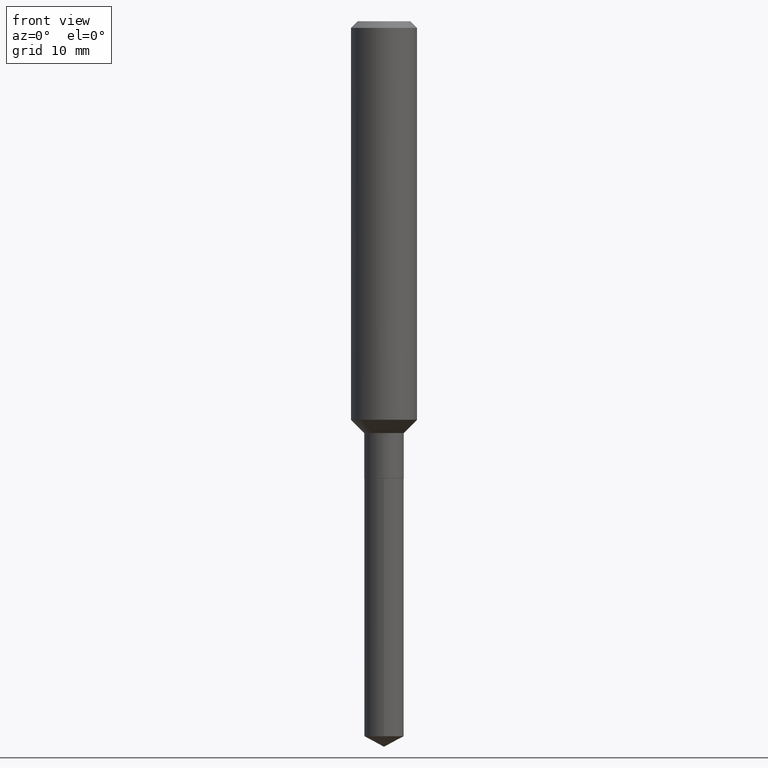
[diagram: clean part render]
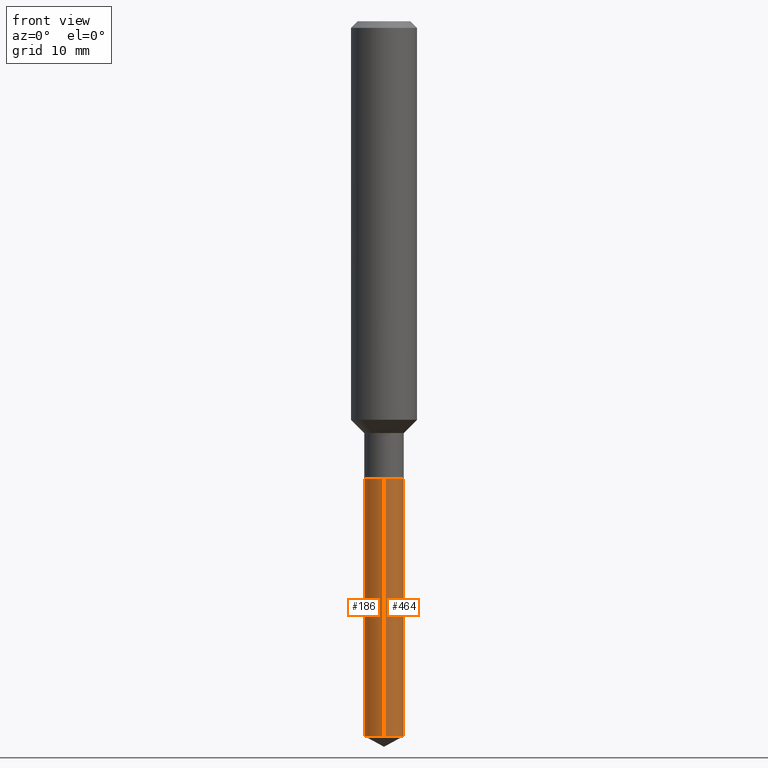
[diagram: same view with one multi-face feature highlighted, each face labeled with its STEP entity id]
A machine part, front view. The highlighted faces form ONE feature: a constant-radius fillet chain: 2 tangent blend faces with common blend radius 1.7996 mm. The faces share edges in the B-rep.
Their STEP definitions:
[1] entity #464 (Cylinder):
#24 = DIRECTION ( 'NONE',  ( -6.982962677686266711E-15, -1.000000000000000000, 0.000000000000000000 ) ) ;
#33 = CARTESIAN_POINT ( 'NONE',  ( -4.947429057140318261E-16, -0.07085000000000571396, -1.637699999999999489 ) ) ;
#37 = EDGE_CURVE ( 'NONE', #253, #355, #335, .T. ) ;
#38 = CYLINDRICAL_SURFACE ( 'NONE', #337, 0.07084999999999999631 ) ;
#50 = VECTOR ( 'NONE', #329, 39.37007874015748143 ) ;
#66 = VERTEX_POINT ( 'NONE', #231 ) ;
#75 = ORIENTED_EDGE ( 'NONE', *, *, #37, .F. ) ;
#97 = AXIS2_PLACEMENT_3D ( 'NONE', #345, #228, #263 ) ;
#118 = CARTESIAN_POINT ( 'NONE',  ( 4.004944263889397849E-29, -5.717998988623418403E-15, -1.637699999999999934 ) ) ;
#149 = ORIENTED_EDGE ( 'NONE', *, *, #359, .T. ) ;
#151 = EDGE_CURVE ( 'NONE', #185, #66, #195, .T. ) ;
#167 = EDGE_LOOP ( 'NONE', ( #236, #149, #75, #283 ) ) ;
#185 = VERTEX_POINT ( 'NONE', #474 ) ;
#195 = CIRCLE ( 'NONE', #202, 0.07084999999999999631 ) ;
#199 = DIRECTION ( 'NONE',  ( -2.439491125561430535E-29, 3.500041717724744558E-15, 1.000000000000000000 ) ) ;
#202 = AXIS2_PLACEMENT_3D ( 'NONE', #338, #429, #24 ) ;
#206 = LINE ( 'NONE', #241, #269 ) ;
#219 = DIRECTION ( 'NONE',  ( -6.982962677686265133E-15, -1.000000000000000000, 3.855819327684210983E-15 ) ) ;
#228 = DIRECTION ( 'NONE',  ( -2.439491125561430535E-29, 3.500041717724744558E-15, 1.000000000000000000 ) ) ;
#231 = CARTESIAN_POINT ( 'NONE',  ( 5.034195282860934727E-16, 0.07084999999999105902, -2.560728386766784936 ) ) ;
#236 = ORIENTED_EDGE ( 'NONE', *, *, #151, .T. ) ;
#241 = CARTESIAN_POINT ( 'NONE',  ( -4.947429057140318261E-16, -0.07085000000000571396, -1.637699999999999489 ) ) ;
#253 = VERTEX_POINT ( 'NONE', #33 ) ;
#254 = EDGE_CURVE ( 'NONE', #185, #253, #206, .T. ) ;
#263 = DIRECTION ( 'NONE',  ( -6.982962677686265133E-15, -1.000000000000000000, 3.855819327684210983E-15 ) ) ;
#269 = VECTOR ( 'NONE', #199, 39.37007874015748143 ) ;
#283 = ORIENTED_EDGE ( 'NONE', *, *, #254, .F. ) ;
#322 = LINE ( 'NONE', #411, #50 ) ;
#325 = DIRECTION ( 'NONE',  ( -2.439491125561430535E-29, 3.500041717724744558E-15, 1.000000000000000000 ) ) ;
#329 = DIRECTION ( 'NONE',  ( -2.439491125561430535E-29, 3.500041717724744558E-15, 1.000000000000000000 ) ) ;
#335 = CIRCLE ( 'NONE', #97, 0.07084999999999999631 ) ;
#337 = AXIS2_PLACEMENT_3D ( 'NONE', #118, #325, #219 ) ;
#338 = CARTESIAN_POINT ( 'NONE',  ( 6.256663822048253662E-29, -8.948636848951337196E-15, -2.560728386766784936 ) ) ;
#345 = CARTESIAN_POINT ( 'NONE',  ( 4.004944263889397849E-29, -5.717998988623418403E-15, -1.637699999999999934 ) ) ;
#355 = VERTEX_POINT ( 'NONE', #454 ) ;
#359 = EDGE_CURVE ( 'NONE', #66, #355, #322, .T. ) ;
#411 = CARTESIAN_POINT ( 'NONE',  ( 5.034195282860708916E-16, 0.07084999999999427867, -1.637700000000000156 ) ) ;
#429 = DIRECTION ( 'NONE',  ( -2.439491125561430535E-29, 3.500041717724744558E-15, 1.000000000000000000 ) ) ;
#450 = FACE_OUTER_BOUND ( 'NONE', #167, .T. ) ;
#454 = CARTESIAN_POINT ( 'NONE',  ( 5.034195282860936699E-16, 0.07084999999999427867, -1.637700000000000156 ) ) ;
#464 = ADVANCED_FACE ( 'NONE', ( #450 ), #38, .T. ) ;
#474 = CARTESIAN_POINT ( 'NONE',  ( -4.947429057140094421E-16, -0.07085000000000894749, -2.560728386766784936 ) ) ;
[2] entity #186 (Cylinder):
#33 = CARTESIAN_POINT ( 'NONE',  ( -4.947429057140318261E-16, -0.07085000000000571396, -1.637699999999999489 ) ) ;
#47 = ORIENTED_EDGE ( 'NONE', *, *, #359, .F. ) ;
#50 = VECTOR ( 'NONE', #329, 39.37007874015748143 ) ;
#52 = FACE_OUTER_BOUND ( 'NONE', #240, .T. ) ;
#61 = DIRECTION ( 'NONE',  ( -2.439491125561430535E-29, 3.500041717724744558E-15, 1.000000000000000000 ) ) ;
#66 = VERTEX_POINT ( 'NONE', #231 ) ;
#90 = DIRECTION ( 'NONE',  ( -6.982962677686266711E-15, -1.000000000000000000, 0.000000000000000000 ) ) ;
#94 = EDGE_CURVE ( 'NONE', #66, #185, #276, .T. ) ;
#106 = DIRECTION ( 'NONE',  ( -6.982962677686265133E-15, -1.000000000000000000, 3.855819327684210983E-15 ) ) ;
#108 = CARTESIAN_POINT ( 'NONE',  ( 4.004944263889397849E-29, -5.717998988623418403E-15, -1.637699999999999934 ) ) ;
#128 = CYLINDRICAL_SURFACE ( 'NONE', #203, 0.07084999999999999631 ) ;
#130 = CIRCLE ( 'NONE', #225, 0.07084999999999999631 ) ;
#185 = VERTEX_POINT ( 'NONE', #474 ) ;
#186 = ADVANCED_FACE ( 'NONE', ( #52 ), #128, .T. ) ;
#199 = DIRECTION ( 'NONE',  ( -2.439491125561430535E-29, 3.500041717724744558E-15, 1.000000000000000000 ) ) ;
#203 = AXIS2_PLACEMENT_3D ( 'NONE', #108, #479, #106 ) ;
#206 = LINE ( 'NONE', #241, #269 ) ;
#212 = EDGE_CURVE ( 'NONE', #355, #253, #130, .T. ) ;
#225 = AXIS2_PLACEMENT_3D ( 'NONE', #477, #61, #311 ) ;
#231 = CARTESIAN_POINT ( 'NONE',  ( 5.034195282860934727E-16, 0.07084999999999105902, -2.560728386766784936 ) ) ;
#240 = EDGE_LOOP ( 'NONE', ( #47, #398, #485, #316 ) ) ;
#241 = CARTESIAN_POINT ( 'NONE',  ( -4.947429057140318261E-16, -0.07085000000000571396, -1.637699999999999489 ) ) ;
#253 = VERTEX_POINT ( 'NONE', #33 ) ;
#254 = EDGE_CURVE ( 'NONE', #185, #253, #206, .T. ) ;
#257 = DIRECTION ( 'NONE',  ( -2.439491125561430535E-29, 3.500041717724744558E-15, 1.000000000000000000 ) ) ;
#269 = VECTOR ( 'NONE', #199, 39.37007874015748143 ) ;
#276 = CIRCLE ( 'NONE', #402, 0.07084999999999999631 ) ;
#311 = DIRECTION ( 'NONE',  ( -6.982962677686265133E-15, -1.000000000000000000, 3.855819327684210983E-15 ) ) ;
#316 = ORIENTED_EDGE ( 'NONE', *, *, #212, .F. ) ;
#322 = LINE ( 'NONE', #411, #50 ) ;
#329 = DIRECTION ( 'NONE',  ( -2.439491125561430535E-29, 3.500041717724744558E-15, 1.000000000000000000 ) ) ;
#355 = VERTEX_POINT ( 'NONE', #454 ) ;
#359 = EDGE_CURVE ( 'NONE', #66, #355, #322, .T. ) ;
#398 = ORIENTED_EDGE ( 'NONE', *, *, #94, .T. ) ;
#402 = AXIS2_PLACEMENT_3D ( 'NONE', #425, #257, #90 ) ;
#411 = CARTESIAN_POINT ( 'NONE',  ( 5.034195282860708916E-16, 0.07084999999999427867, -1.637700000000000156 ) ) ;
#425 = CARTESIAN_POINT ( 'NONE',  ( 6.256663822048253662E-29, -8.948636848951337196E-15, -2.560728386766784936 ) ) ;
#454 = CARTESIAN_POINT ( 'NONE',  ( 5.034195282860936699E-16, 0.07084999999999427867, -1.637700000000000156 ) ) ;
#474 = CARTESIAN_POINT ( 'NONE',  ( -4.947429057140094421E-16, -0.07085000000000894749, -2.560728386766784936 ) ) ;
#477 = CARTESIAN_POINT ( 'NONE',  ( 4.004944263889397849E-29, -5.717998988623418403E-15, -1.637699999999999934 ) ) ;
#479 = DIRECTION ( 'NONE',  ( -2.439491125561430535E-29, 3.500041717724744558E-15, 1.000000000000000000 ) ) ;
#485 = ORIENTED_EDGE ( 'NONE', *, *, #254, .T. ) ;